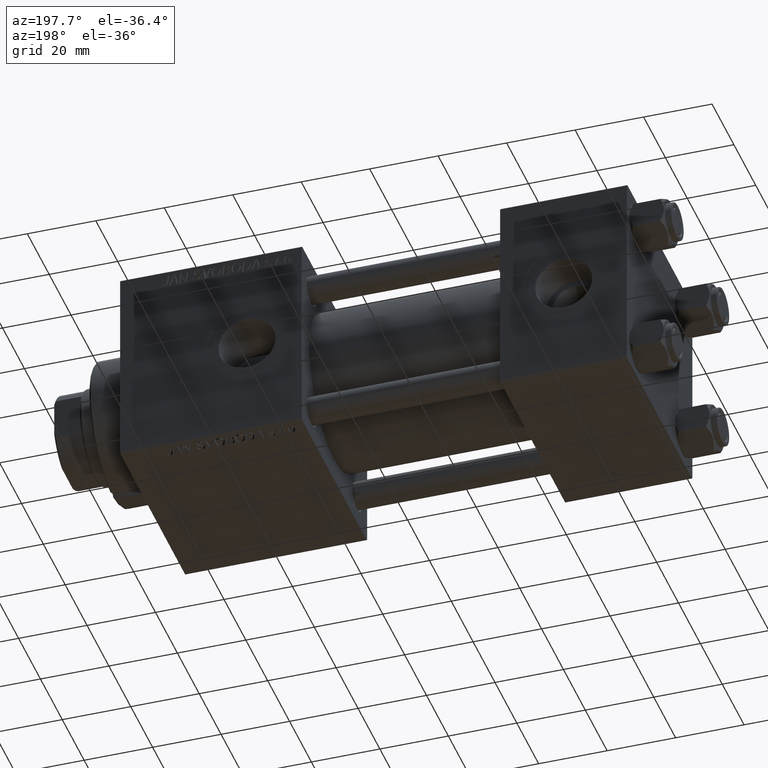
[diagram: clean part render]
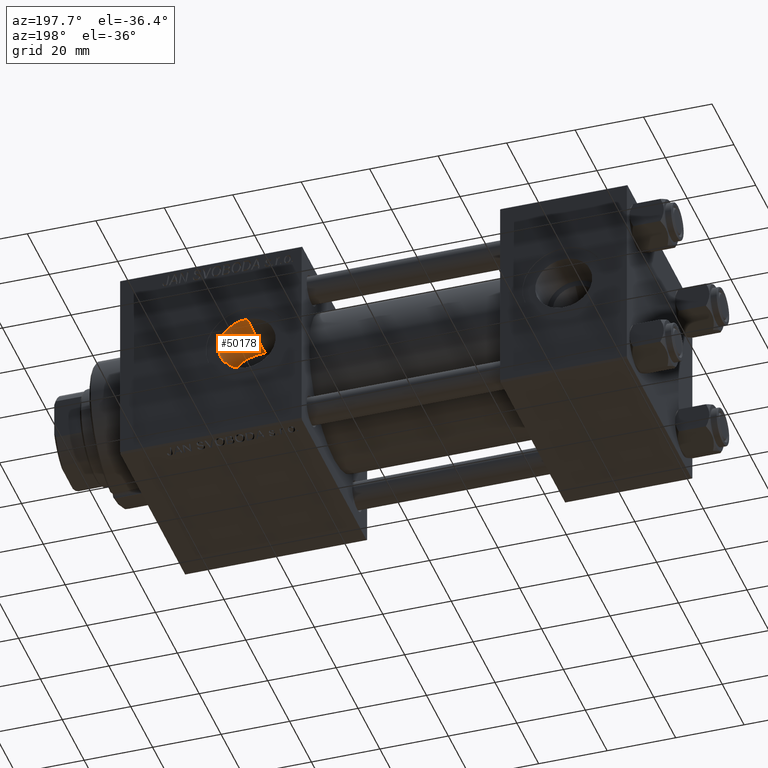
[diagram: same view with one face highlighted and labeled with its STEP entity id]
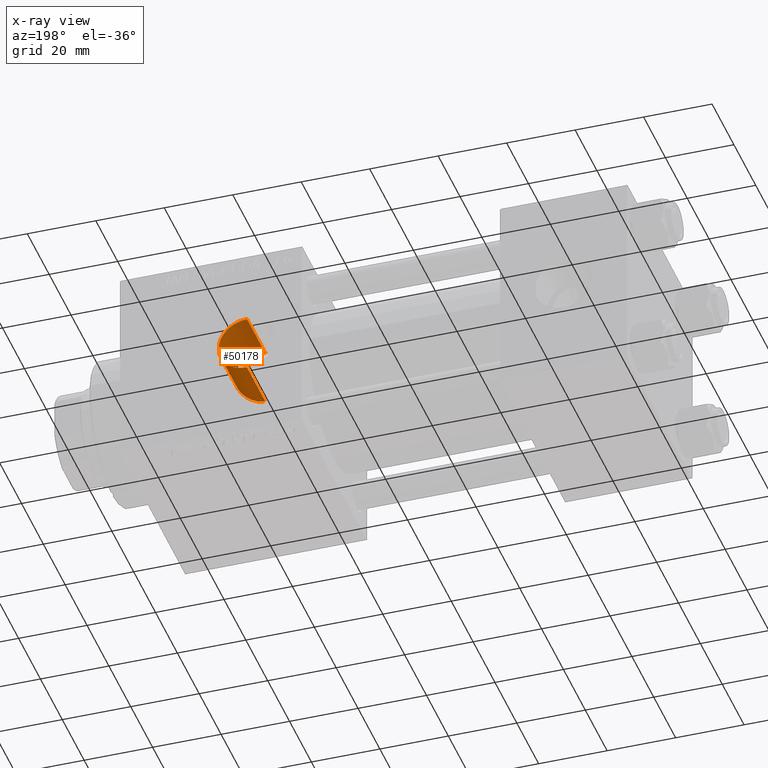
[diagram: x-ray of the same camera — body ghosted, the highlighted face saturated]
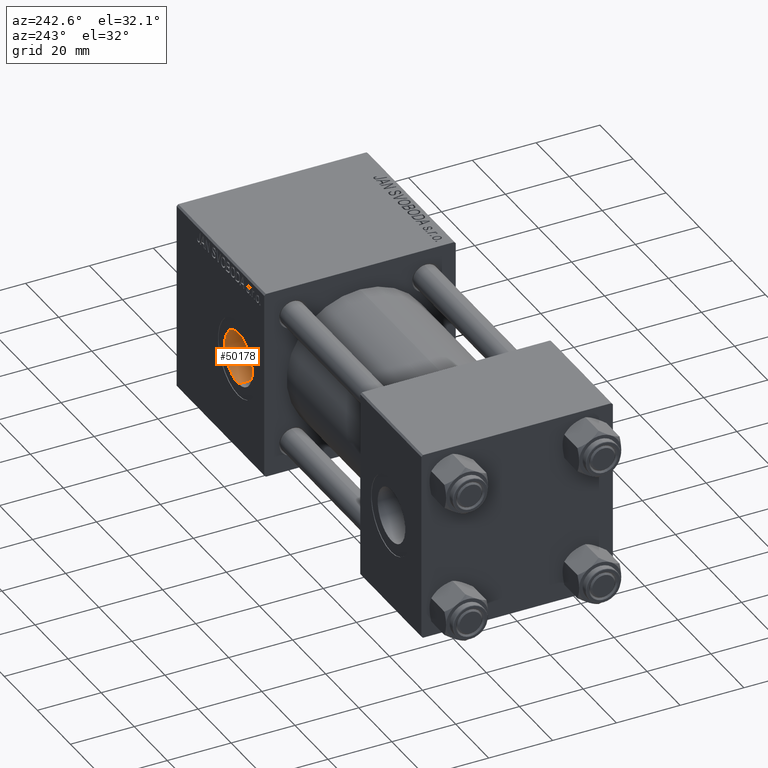
[diagram: same view with one face highlighted and labeled with its STEP entity id]
A machine part, auxiliary view. The second image highlights one B-rep face of the part: STEP entity #50178.
The next image is the same camera in x-ray: the body ghosted, the highlighted face saturated — about 0% of this face is hidden behind the body in this view.
A second angle (auxiliary view) of the same face is appended — the face is thin or edge-on in the first view.
In plain terms, the highlighted cylindrical surface (edge-blend (fillet) strip) has radius 8.33 mm, axis along (0, 1, 0).
Its self-contained STEP definition (entity closure, byte-faithful):
#225 = CARTESIAN_POINT ( 'NONE',  ( 114.2967157190157224, 13.47871316055933910, -7.654153397318582464 ) ) ;
#324 = B_SPLINE_CURVE_WITH_KNOTS ( 'NONE', 3,
 ( #50190, #42293, #31073, #7318, #27236, #23646, #42790, #22902, #19574, #7815, #23396, #19084, #26986, #40227, #16228, #35632, #28497, #31822, #13854, #20589, #1174, #45248, #29701, #10021, #2366, #36396 ),
 .UNSPECIFIED., .F., .F.,
 ( 4, 2, 2, 2, 2, 2, 2, 2, 2, 2, 2, 2, 4 ),
 ( 0.03913401837994093246, 0.04070328285828624798, 0.04148791509745888145, 0.04227254733663151492, 0.04305717957580415534, 0.04384181181497678881, 0.04541107629332209739, 0.04619570853249475861, 0.04698034077166742678, 0.04854960525001276311, 0.04933423748918543128, 0.05011886972835809945, 0.05168813420670344272 ),
 .UNSPECIFIED. ) ;
#1174 = CARTESIAN_POINT ( 'NONE',  ( 118.6822928041267460, 15.16154064194606832, 3.230894220743037337 ) ) ;
#1211 = EDGE_CURVE ( 'NONE', #5770, #10036, #11083, .T. ) ;
#1732 = ORIENTED_EDGE ( 'NONE', *, *, #11541, .F. ) ;
#2251 = DIRECTION ( 'NONE',  ( 0.000000000000000000, 0.000000000000000000, 1.000000000000000000 ) ) ;
#2307 = CARTESIAN_POINT ( 'NONE',  ( 116.9981023382939185, 14.38104172281234838, -5.785895508625664263 ) ) ;
#2366 = CARTESIAN_POINT ( 'NONE',  ( 119.2548578931568670, 15.45970008020807995, 1.236789175214873859 ) ) ;
#2928 = LINE ( 'NONE', #38139, #31923 ) ;
#3055 = CARTESIAN_POINT ( 'NONE',  ( 112.3100362629092075, 13.13435081139347105, -8.230567954363216643 ) ) ;
#4256 = ORIENTED_EDGE ( 'NONE', *, *, #21549, .T. ) ;
#5140 = CARTESIAN_POINT ( 'NONE',  ( 111.0000000000000000, 29.80000000000000071, 0.000000000000000000 ) ) ;
#5561 = CYLINDRICAL_SURFACE ( 'NONE', #40912, 8.329999999999998295 ) ;
#5770 = VERTEX_POINT ( 'NONE', #25314 ) ;
#6129 = CARTESIAN_POINT ( 'NONE',  ( 117.5038661107733446, 14.59941021605545508, -5.210895517138066424 ) ) ;
#6573 = CARTESIAN_POINT ( 'NONE',  ( 111.0000000000000000, -23.56079794913576464, 0.000000000000000000 ) ) ;
#6632 = CARTESIAN_POINT ( 'NONE',  ( 118.9495971008767441, 15.29881070486920613, -2.502064903856538347 ) ) ;
#7049 = LINE ( 'NONE', #22385, #43052 ) ;
#7318 = CARTESIAN_POINT ( 'NONE',  ( 112.8219548695088577, 13.19525269415003521, 8.132569749083641497 ) ) ;
#7548 = DIRECTION ( 'NONE',  ( 0.000000000000000000, -1.000000000000000000, 0.000000000000000000 ) ) ;
#7815 = CARTESIAN_POINT ( 'NONE',  ( 114.9951459126083932, 13.66651525816009638, 7.313954529124097270 ) ) ;
#8119 = CARTESIAN_POINT ( 'NONE',  ( 111.0000000000000000, 29.80000000000000071, 8.329999999999998295 ) ) ;
#8707 = AXIS2_PLACEMENT_3D ( 'NONE', #5140, #12807, #23804 ) ;
#9991 = CARTESIAN_POINT ( 'NONE',  ( 111.0000000000000000, 13.07138477744420157, -8.329999999999998295 ) ) ;
#10021 = CARTESIAN_POINT ( 'NONE',  ( 119.1603867149309934, 15.40904739298319726, 1.751026263662018856 ) ) ;
#10036 = VERTEX_POINT ( 'NONE', #33628 ) ;
#11083 = B_SPLINE_CURVE_WITH_KNOTS ( 'NONE', 3,
 ( #26811, #33960, #46181, #18153 ),
 .UNSPECIFIED., .F., .F.,
 ( 4, 4 ),
 ( 0.000000000000000000, 0.001412657070913077816 ),
 .UNSPECIFIED. ) ;
#11199 = B_SPLINE_CURVE_WITH_KNOTS ( 'NONE', 3,
 ( #17391, #29139, #41612, #6632, #37025, #25305, #48760, #25560, #41115, #6129, #37274, #2307, #17892, #33457, #49013, #42356, #11454, #23216, #225, #15783, #31391, #3055, #27050, #46925, #43095, #11954 ),
 .UNSPECIFIED., .F., .F.,
 ( 4, 2, 2, 2, 2, 2, 2, 2, 2, 2, 2, 2, 4 ),
 ( 0.000000000000000000, 0.001573736985091549407, 0.002360605477637318581, 0.003147473970183088405, 0.004721210955274627620, 0.005508079447820397011, 0.006294947940366165534, 0.007868684925457671356, 0.008655553418003440747, 0.009442421910549208403, 0.01101615889564074718, 0.01180302738818651657, 0.01258989588073228597 ),
 .UNSPECIFIED. ) ;
#11454 = CARTESIAN_POINT ( 'NONE',  ( 114.9866666268976871, 13.66405600785376073, -7.318530569367452721 ) ) ;
#11541 = EDGE_CURVE ( 'NONE', #27192, #43275, #11199, .T. ) ;
#11773 = CARTESIAN_POINT ( 'NONE',  ( 119.2999999999999545, 15.48389808801386103, -0.7063285354568843433 ) ) ;
#11934 = CIRCLE ( 'NONE', #8707, 8.329999999999998295 ) ;
#11954 = CARTESIAN_POINT ( 'NONE',  ( 111.0000000000000000, 13.07138477744420157, -8.329999999999998295 ) ) ;
#12807 = DIRECTION ( 'NONE',  ( 0.000000000000000000, 1.000000000000000000, 0.000000000000000000 ) ) ;
#13148 = CARTESIAN_POINT ( 'NONE',  ( 111.0000000000000000, -23.56079794913576464, -8.329999999999998295 ) ) ;
#13854 = CARTESIAN_POINT ( 'NONE',  ( 118.2327293144839615, 14.93766255880002802, 4.164506629263158288 ) ) ;
#15783 = CARTESIAN_POINT ( 'NONE',  ( 113.5825656204475251, 13.31599943355503513, -7.936072697678499210 ) ) ;
#16213 = DIRECTION ( 'NONE',  ( -0.000000000000000000, 1.000000000000000000, -0.000000000000000000 ) ) ;
#16228 = CARTESIAN_POINT ( 'NONE',  ( 117.0070487169023323, 14.38478166710813788, 5.776585611950313393 ) ) ;
#16416 = VERTEX_POINT ( 'NONE', #43005 ) ;
#17014 = VERTEX_POINT ( 'NONE', #28795 ) ;
#17321 = LINE ( 'NONE', #21151, #40271 ) ;
#17391 = CARTESIAN_POINT ( 'NONE',  ( 119.2999999999999545, 15.48389808801386103, -0.7063285354568843433 ) ) ;
#17892 = CARTESIAN_POINT ( 'NONE',  ( 116.8195131405946370, 14.30729453321618472, -5.965390198177446202 ) ) ;
#18153 = CARTESIAN_POINT ( 'NONE',  ( 119.2999999999999829, 22.48891060056044111, -0.7063285354565389529 ) ) ;
#18475 = EDGE_LOOP ( 'NONE', ( #31330, #1732, #4256, #28087, #48661, #33749, #25199, #22215 ) ) ;
#19084 = CARTESIAN_POINT ( 'NONE',  ( 115.8659748588320468, 13.94174107101765969, 6.780159205219757013 ) ) ;
#19574 = CARTESIAN_POINT ( 'NONE',  ( 114.5360635269046554, 13.53943107020367975, 7.546613575029591736 ) ) ;
#19919 = EDGE_CURVE ( 'NONE', #43275, #16416, #43274, .T. ) ;
#20589 = CARTESIAN_POINT ( 'NONE',  ( 118.5769211660445848, 15.10830588459374901, 3.470707830398306992 ) ) ;
#21151 = CARTESIAN_POINT ( 'NONE',  ( 119.2999999999999829, -23.56079794913576464, -0.7063285354565389529 ) ) ;
#21549 = EDGE_CURVE ( 'NONE', #27192, #10036, #17321, .T. ) ;
#22215 = ORIENTED_EDGE ( 'NONE', *, *, #27789, .T. ) ;
#22385 = CARTESIAN_POINT ( 'NONE',  ( 119.2999999999999829, -23.56079794913576464, 0.7063285354565389529 ) ) ;
#22902 = CARTESIAN_POINT ( 'NONE',  ( 114.3016578055066788, 13.47989965133656654, 7.652074667154193932 ) ) ;
#23216 = CARTESIAN_POINT ( 'NONE',  ( 114.5298627466631700, 13.53783021026728228, -7.549468158652298477 ) ) ;
#23396 = CARTESIAN_POINT ( 'NONE',  ( 115.2193155963434350, 13.73397456283779050, 7.186871255433852745 ) ) ;
#23646 = CARTESIAN_POINT ( 'NONE',  ( 113.5782963824083112, 13.32096908978829930, 7.925212443724122480 ) ) ;
#23804 = DIRECTION ( 'NONE',  ( 0.000000000000000000, 0.000000000000000000, 1.000000000000000000 ) ) ;
#24427 = VERTEX_POINT ( 'NONE', #8119 ) ;
#24834 = CARTESIAN_POINT ( 'NONE',  ( 119.2999999999999829, 15.48389808801387701, 0.7063285354565389529 ) ) ;
#25199 = ORIENTED_EDGE ( 'NONE', *, *, #47571, .T. ) ;
#25305 = CARTESIAN_POINT ( 'NONE',  ( 118.6807830835711854, 15.16077412161568105, -3.234538867896858960 ) ) ;
#25314 = CARTESIAN_POINT ( 'NONE',  ( 119.2999999999999829, 22.48891060056044111, 0.7063285354565389529 ) ) ;
#25560 = CARTESIAN_POINT ( 'NONE',  ( 118.2311441061567336, 14.93689489857067798, -4.167204431924019126 ) ) ;
#26783 = EDGE_CURVE ( 'NONE', #17014, #45384, #324, .T. ) ;
#26811 = CARTESIAN_POINT ( 'NONE',  ( 119.2999999999999829, 22.48891060056044111, 0.7063285354565389529 ) ) ;
#26986 = CARTESIAN_POINT ( 'NONE',  ( 116.2670929774037489, 14.08850605774807541, 6.473307342423979982 ) ) ;
#27050 = CARTESIAN_POINT ( 'NONE',  ( 112.0469481323702183, 13.11064440573298562, -8.268123322969636035 ) ) ;
#27192 = VERTEX_POINT ( 'NONE', #11773 ) ;
#27236 = CARTESIAN_POINT ( 'NONE',  ( 113.0786390487004667, 13.23334219123566413, 8.070679291045902204 ) ) ;
#27789 = EDGE_CURVE ( 'NONE', #24427, #16416, #11934, .T. ) ;
#28087 = ORIENTED_EDGE ( 'NONE', *, *, #1211, .F. ) ;
#28497 = CARTESIAN_POINT ( 'NONE',  ( 117.5093994186242554, 14.60188515032207235, 5.203909295342147523 ) ) ;
#28795 = CARTESIAN_POINT ( 'NONE',  ( 111.0000000000000000, 13.07138477744420335, 8.329999999999998295 ) ) ;
#29078 = DIRECTION ( 'NONE',  ( -0.000000000000000000, 1.000000000000000000, -0.000000000000000000 ) ) ;
#29139 = CARTESIAN_POINT ( 'NONE',  ( 119.2548577491531603, 15.45970000301623593, -1.236790867388533277 ) ) ;
#29701 = CARTESIAN_POINT ( 'NONE',  ( 118.9501622008757806, 15.29910492727365146, 2.500219401988606371 ) ) ;
#31073 = CARTESIAN_POINT ( 'NONE',  ( 112.0461840406556178, 13.10312548633756791, 8.280799480365807597 ) ) ;
#31330 = ORIENTED_EDGE ( 'NONE', *, *, #19919, .F. ) ;
#31391 = CARTESIAN_POINT ( 'NONE',  ( 113.0870102934826065, 13.22695039952759899, -8.081550809158409621 ) ) ;
#31822 = CARTESIAN_POINT ( 'NONE',  ( 117.9652758845073066, 14.80887722804606099, 4.596742632999693434 ) ) ;
#31923 = VECTOR ( 'NONE', #49391, 1000.000000000000000 ) ;
#33457 = CARTESIAN_POINT ( 'NONE',  ( 116.2617060862982896, 14.08651928636616191, -6.477515164140619675 ) ) ;
#33628 = CARTESIAN_POINT ( 'NONE',  ( 119.2999999999999829, 22.48891060056044111, -0.7063285354565389529 ) ) ;
#33749 = ORIENTED_EDGE ( 'NONE', *, *, #26783, .F. ) ;
#33960 = CARTESIAN_POINT ( 'NONE',  ( 119.3400722891566375, 22.50370011197376030, 0.2354428451521797250 ) ) ;
#35632 = CARTESIAN_POINT ( 'NONE',  ( 117.3482497524333610, 14.53057411950410405, 5.399379658827422546 ) ) ;
#36057 = EDGE_CURVE ( 'NONE', #5770, #45384, #7049, .T. ) ;
#36396 = CARTESIAN_POINT ( 'NONE',  ( 119.2999999999999829, 15.48389808801387701, 0.7063285354565389529 ) ) ;
#36702 = DIRECTION ( 'NONE',  ( -0.000000000000000000, 1.000000000000000000, -0.000000000000000000 ) ) ;
#37025 = CARTESIAN_POINT ( 'NONE',  ( 118.8677676032710906, 15.25635638836676833, -2.748618454010613554 ) ) ;
#37274 = CARTESIAN_POINT ( 'NONE',  ( 117.3405069309765025, 14.52718684103649061, -5.408492429098928689 ) ) ;
#38139 = CARTESIAN_POINT ( 'NONE',  ( 111.0000000000000000, -23.56079794913576464, 8.329999999999998295 ) ) ;
#40227 = CARTESIAN_POINT ( 'NONE',  ( 116.8267705610786180, 14.31024157022162768, 5.958348254681985701 ) ) ;
#40271 = VECTOR ( 'NONE', #36702, 1000.000000000000000 ) ;
#40912 = AXIS2_PLACEMENT_3D ( 'NONE', #6573, #29078, #2251 ) ;
#41115 = CARTESIAN_POINT ( 'NONE',  ( 117.9629611197896537, 14.80775285567985300, -4.600575871983989096 ) ) ;
#41612 = CARTESIAN_POINT ( 'NONE',  ( 119.1603378510677373, 15.40901922616038000, -1.751535770101309453 ) ) ;
#42293 = CARTESIAN_POINT ( 'NONE',  ( 111.5250792235146946, 13.07138477744419980, 8.330000000000000071 ) ) ;
#42356 = CARTESIAN_POINT ( 'NONE',  ( 115.2114468086628705, 13.73154641178001079, -7.191515912582140402 ) ) ;
#42790 = CARTESIAN_POINT ( 'NONE',  ( 113.8227738456036633, 13.37066948693537682, 7.841373527191652038 ) ) ;
#43005 = CARTESIAN_POINT ( 'NONE',  ( 111.0000000000000000, 29.80000000000000071, -8.329999999999998295 ) ) ;
#43052 = VECTOR ( 'NONE', #7548, 1000.000000000000000 ) ;
#43095 = CARTESIAN_POINT ( 'NONE',  ( 111.2619165198304927, 13.07138477744420335, -8.330000000000000071 ) ) ;
#43274 = LINE ( 'NONE', #13148, #46951 ) ;
#43275 = VERTEX_POINT ( 'NONE', #9991 ) ;
#44618 = FACE_OUTER_BOUND ( 'NONE', #18475, .T. ) ;
#45248 = CARTESIAN_POINT ( 'NONE',  ( 118.8685778137929248, 15.25677582979965408, 2.746230759104961727 ) ) ;
#45384 = VERTEX_POINT ( 'NONE', #24834 ) ;
#46181 = CARTESIAN_POINT ( 'NONE',  ( 119.3400722891566375, 22.50370011197376385, -0.2354428451521793919 ) ) ;
#46925 = CARTESIAN_POINT ( 'NONE',  ( 111.5236897240490777, 13.07926401862041921, -8.317674720054480275 ) ) ;
#46951 = VECTOR ( 'NONE', #16213, 1000.000000000000000 ) ;
#47571 = EDGE_CURVE ( 'NONE', #17014, #24427, #2928, .T. ) ;
#48661 = ORIENTED_EDGE ( 'NONE', *, *, #36057, .T. ) ;
#48760 = CARTESIAN_POINT ( 'NONE',  ( 118.5753408044775483, 15.10751334057720641, -3.474139628941262270 ) ) ;
#49013 = CARTESIAN_POINT ( 'NONE',  ( 115.8607149166065398, 13.93985581156448283, -6.784061605848942023 ) ) ;
#49391 = DIRECTION ( 'NONE',  ( -0.000000000000000000, 1.000000000000000000, -0.000000000000000000 ) ) ;
#50178 = ADVANCED_FACE ( 'NONE', ( #44618 ), #5561, .F. ) ;
#50190 = CARTESIAN_POINT ( 'NONE',  ( 111.0000000000000000, 13.07138477744420335, 8.329999999999998295 ) ) ;